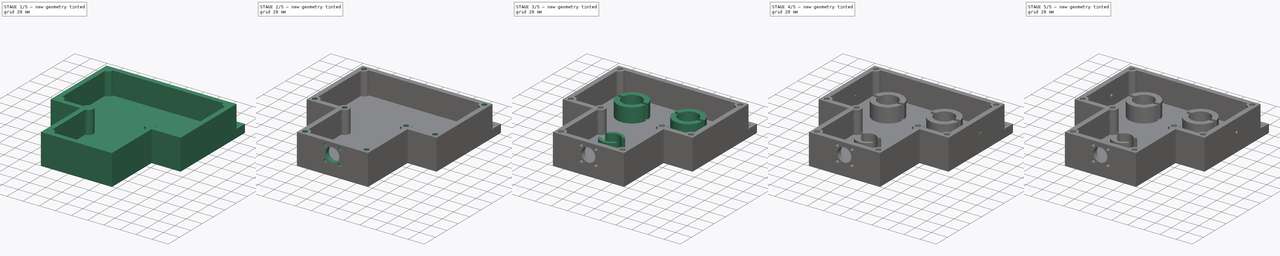
[diagram: build sequence overview — one tinted view per stage of 5, left to right]
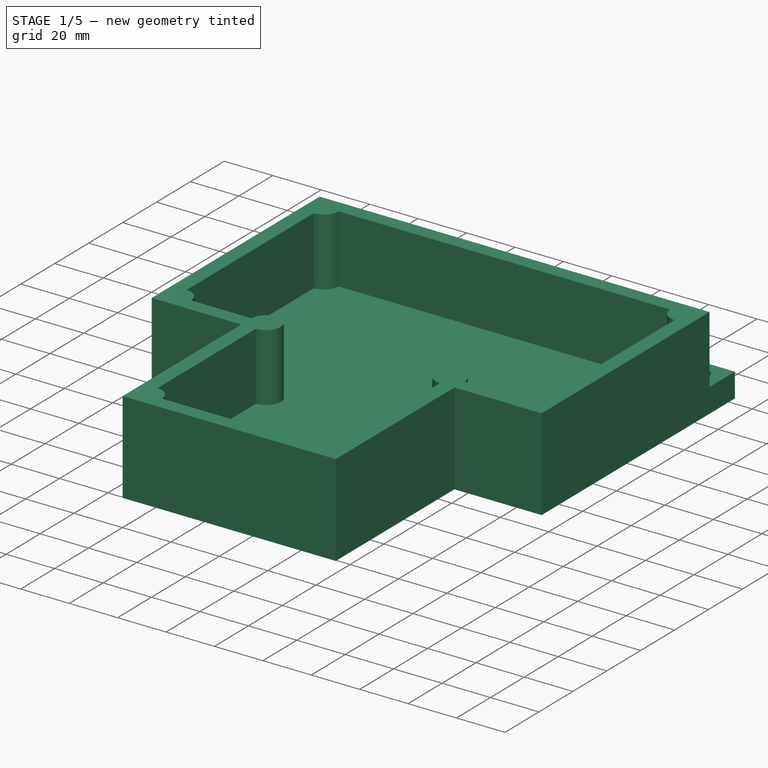
[diagram: stage 1 of 5 — iso view after this stage's code; geometry added in this stage tinted green]
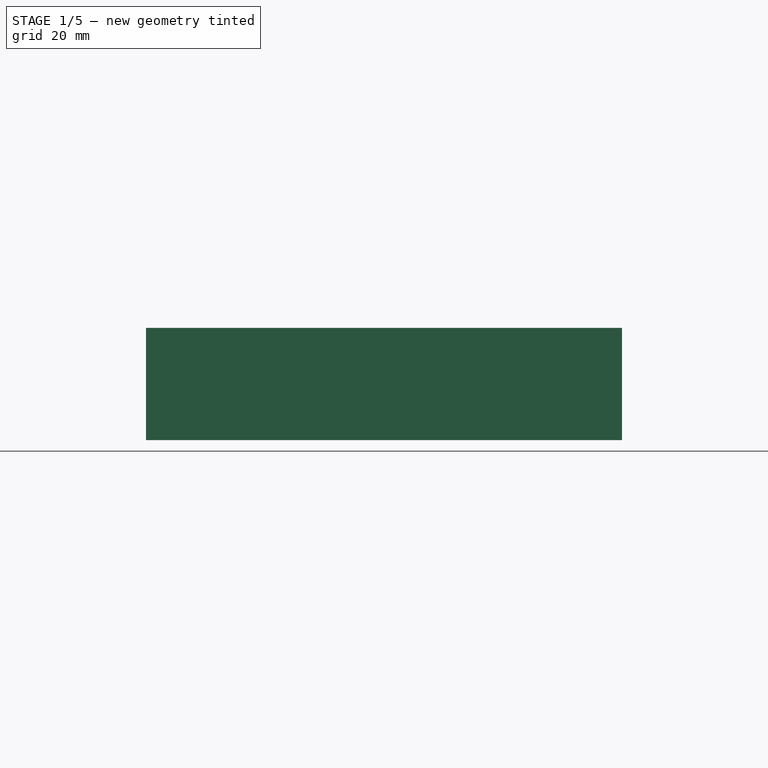
[diagram: stage 1 of 5 — front view after this stage's code; geometry added in this stage tinted green]
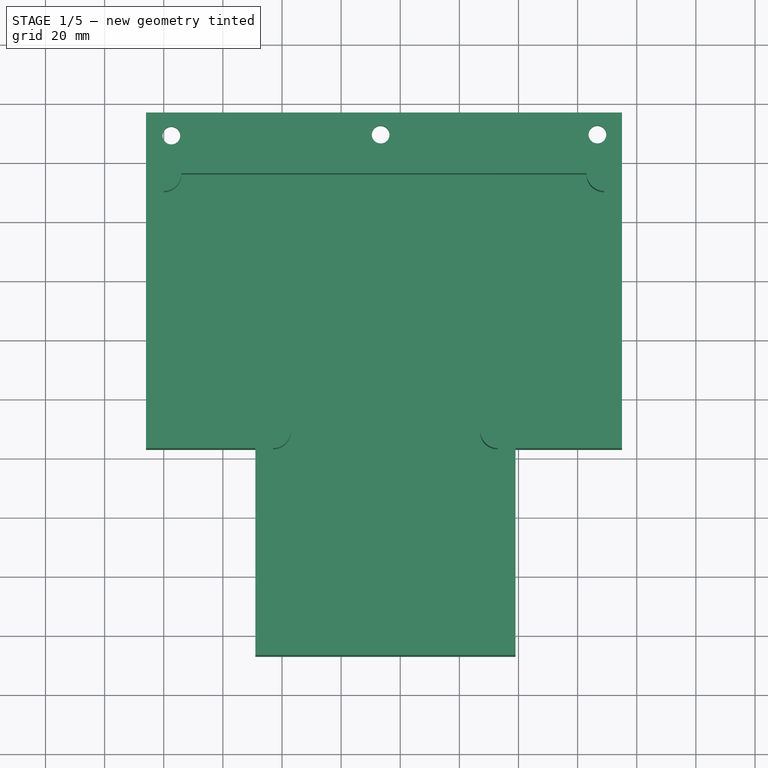
[diagram: stage 1 of 5 — top view after this stage's code; geometry added in this stage tinted green]
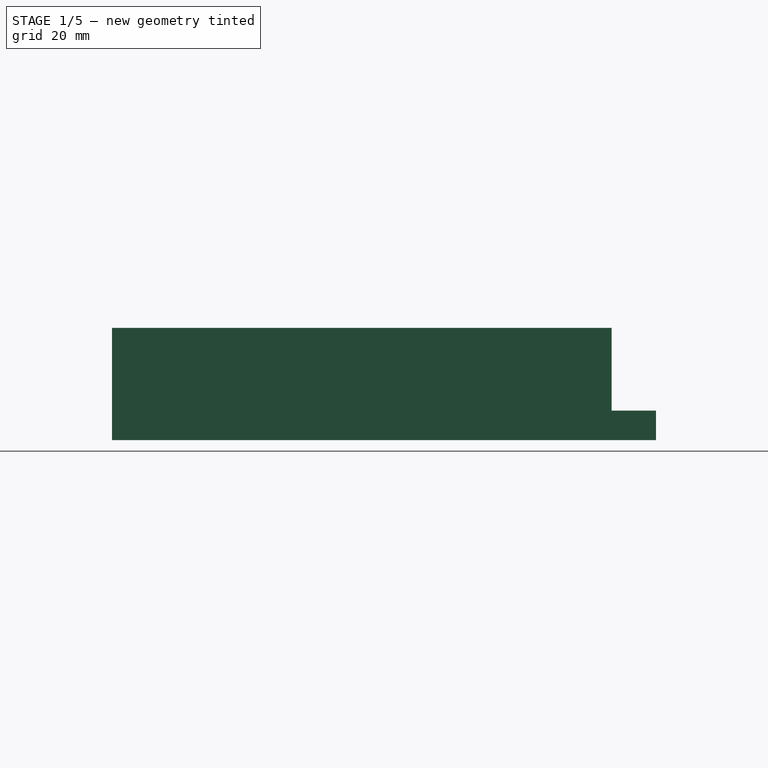
[diagram: stage 1 of 5 — right view after this stage's code; geometry added in this stage tinted green]
FCSTD DOCUMENT  (FreeCAD 0.19R)
Label: balunbox
License: All rights reserved
LicenseURL: http://en.wikipedia.org/wiki/All_rights_reserved
objects: Sketcher::SketchObject×16, PartDesign::Hole×10, PartDesign::Pad×6, PartDesign::Body×2, PartDesign::Plane×2
note: 52 computed .brp shape members not serialized (recipe doc carries the construction recipe); baked Part::Feature solids carry a one-line shape summary decoded from their .brp

FEATURE [Sketcher::SketchObject] Sketch
  FullyConstrained = false
  MapMode = 5
  Support = -> [XY_Plane]
  sketch-geometry (16):
    g0: Circle CenterX=0 CenterY=0 CenterZ=0 NormalX=0 NormalY=0 NormalZ=1 AngleXU=0 Radius=19
    g1: Circle CenterX=0 CenterY=0 CenterZ=0 NormalX=0 NormalY=0 NormalZ=1 AngleXU=0 Radius=31
    g2: LineSegment StartX=31 StartY=0 StartZ=0 EndX=39 EndY=0 EndZ=0
    g3: LineSegment StartX=39 StartY=0 StartZ=0 EndX=70 EndY=0 EndZ=0
    g4: Circle CenterX=70 CenterY=0 CenterZ=0 NormalX=0 NormalY=0 NormalZ=1 AngleXU=0 Radius=31
    g5: Circle CenterX=70 CenterY=0 CenterZ=0 NormalX=0 NormalY=0 NormalZ=1 AngleXU=0 Radius=19
    g6: LineSegment StartX=-46 StartY=57 StartZ=0 EndX=115 EndY=57 EndZ=0
    g7: LineSegment StartX=115 StartY=57 StartZ=0 EndX=115 EndY=-57 EndZ=0
    g8: LineSegment StartX=115 StartY=-57 StartZ=0 EndX=79 EndY=-57 EndZ=0
    g9: LineSegment StartX=-46 StartY=-57 StartZ=0 EndX=-46 EndY=57 EndZ=0
    g10: LineSegment StartX=35 StartY=2 StartZ=0 EndX=35 EndY=-96 EndZ=0
    g11: Circle CenterX=35 CenterY=-77.4649 CenterZ=0 NormalX=0 NormalY=0 NormalZ=1 AngleXU=0 Radius=25.5
    g12: LineSegment StartX=79 StartY=-57 StartZ=0 EndX=79 EndY=-127 EndZ=0
    g13: LineSegment StartX=79 StartY=-127 StartZ=0 EndX=-9 EndY=-127 EndZ=0
    g14: LineSegment StartX=-9 StartY=-127 StartZ=0 EndX=-9 EndY=-57 EndZ=0
    g15: LineSegment StartX=-9 StartY=-57 StartZ=0 EndX=-46 EndY=-57 EndZ=0
  constraints (33):
    c: Coincident(g0,g-1)
    c: Diameter(g0) = 38
    c: Coincident(g1,g0)
    c: Diameter(g1) = 62
    c: PointOnObject(g2,g1)
    c: PointOnObject(g2,g-1)
    c: Horizontal(g2)
    c: DistanceX(g2,g2) = 8
    c: Coincident(g3,g2)
    c: PointOnObject(g3,g-1)
    c: Coincident(g4,g3)
    c: Coincident(g5,g3)
    c: Coincident(g6,g7)
    c: Coincident(g7,g8)
    c: Coincident(g15,g9)
    c: Coincident(g9,g6)
    c: Horizontal(g6)
    c: Horizontal(g8)
    c: Vertical(g7)
    c: Vertical(g9)
    c: Vertical(g10)
    c: Diameter(g5) = 38
    c: Diameter(g4) = 62
    c: PointOnObject(g11,g10)
    c: Diameter(g11) = 51
    c: Coincident(g12,g13)
    c: Coincident(g13,g14)
    c: Horizontal(g13)
    c: Vertical(g12)
    c: Vertical(g14)
    c: Tangent(g8,g15)
    c: Coincident(g14,g15)
    c: Coincident(g12,g8)
FEATURE [PartDesign::Pad] Pad
  Direction = (1,1,1)
  Length = 10
  Length2 = 100
  Profile = -> Sketch
  Type = 0
FEATURE [Sketcher::SketchObject] Sketch001
  FullyConstrained = false
  MapMode = 2
  Placement = pos=(0,0,10) rot=(0,0,1;0rad)
  Support = -> [Sketch001]
  sketch-geometry (24):
    g0: LineSegment StartX=-46 StartY=42 StartZ=0 EndX=115 EndY=42 EndZ=0
    g1: LineSegment StartX=115 StartY=42 StartZ=0 EndX=115 EndY=-57 EndZ=0
    g2: LineSegment StartX=115 StartY=-57 StartZ=0 EndX=79 EndY=-57 EndZ=0
    g3: LineSegment StartX=79 StartY=-57 StartZ=0 EndX=79 EndY=-127 EndZ=0
    g4: LineSegment StartX=79 StartY=-127 StartZ=0 EndX=-9 EndY=-127 EndZ=0
    g5: LineSegment StartX=-9 StartY=-127 StartZ=0 EndX=-9 EndY=-57 EndZ=0
    g6: LineSegment StartX=-9 StartY=-57 StartZ=0 EndX=-46 EndY=-57 EndZ=0
    g7: LineSegment StartX=-46 StartY=-57 StartZ=0 EndX=-46 EndY=42 EndZ=0
    g8: LineSegment StartX=103 StartY=36 StartZ=0 EndX=-34 EndY=36 EndZ=0
    g9: LineSegment StartX=-40 StartY=30 StartZ=0 EndX=-40 EndY=-45 EndZ=0
    g10: LineSegment StartX=-34 StartY=-51 StartZ=0 EndX=-9 EndY=-51 EndZ=0
    g11: LineSegment StartX=-3 StartY=-57 StartZ=0 EndX=-3 EndY=-115 EndZ=0
    g12: LineSegment StartX=3 StartY=-121 StartZ=0 EndX=67.0096 EndY=-121 EndZ=0
    g13: LineSegment StartX=73 StartY=-115.01 StartZ=0 EndX=73 EndY=-57 EndZ=0
    g14: LineSegment StartX=79 StartY=-51 StartZ=0 EndX=103 EndY=-51 EndZ=0
    g15: LineSegment StartX=109 StartY=-45 StartZ=0 EndX=109 EndY=30 EndZ=0
    g16: ArcOfCircle CenterX=109 CenterY=36 CenterZ=0 NormalX=0 NormalY=0 NormalZ=1 AngleXU=0 Radius=6 StartAngle=3.14159 EndAngle=4.71239
    g17: ArcOfCircle CenterX=109 CenterY=-51 CenterZ=0 NormalX=0 NormalY=0 NormalZ=1 AngleXU=0 Radius=6 StartAngle=1.5708 EndAngle=3.14159
    g18: ArcOfCircle CenterX=-3 CenterY=-121 CenterZ=0 NormalX=0 NormalY=0 NormalZ=1 AngleXU=0 Radius=6 StartAngle=0 EndAngle=1.5708
    g19: ArcOfCircle CenterX=73 CenterY=-121 CenterZ=0 NormalX=0 NormalY=0 NormalZ=1 AngleXU=0 Radius=5.99043 StartAngle=1.5708 EndAngle=3.14159
    g20: ArcOfCircle CenterX=-40 CenterY=-51 CenterZ=0 NormalX=0 NormalY=0 NormalZ=1 AngleXU=0 Radius=6 StartAngle=0 EndAngle=1.5708
    g21: ArcOfCircle CenterX=-40 CenterY=36 CenterZ=0 NormalX=0 NormalY=0 NormalZ=1 AngleXU=0 Radius=6 StartAngle=4.71239 EndAngle=6.28319
    g22: ArcOfCircle CenterX=73 CenterY=-51 CenterZ=0 NormalX=0 NormalY=0 NormalZ=1 AngleXU=0 Radius=6 StartAngle=0 EndAngle=4.71239
    g23: ArcOfCircle CenterX=-3 CenterY=-51 CenterZ=0 NormalX=0 NormalY=0 NormalZ=1 AngleXU=0 Radius=6 StartAngle=4.71239 EndAngle=9.42478
  constraints (40):
    c: Horizontal(g0)
    c: Coincident(g0,g1)
    c: Vertical(g1)
    c: Coincident(g1,g2)
    c: Horizontal(g2)
    c: Coincident(g2,g3)
    c: Vertical(g3)
    c: Coincident(g3,g4)
    c: Horizontal(g4)
    c: Coincident(g4,g5)
    c: Vertical(g5)
    c: Coincident(g5,g6)
    c: Horizontal(g6)
    c: Coincident(g6,g7)
    c: Coincident(g7,g0)
    c: Vertical(g7)
    c: Horizontal(g8)
    c: Vertical(g9)
    c: Horizontal(g10)
    c: Vertical(g11)
    c: Horizontal(g12)
    c: Vertical(g13)
    c: Horizontal(g14)
    c: Vertical(g15)
    c: Coincident(g9,g21)
    c: Coincident(g8,g21)
    c: Coincident(g8,g16)
    c: Coincident(g15,g16)
    c: Coincident(g14,g17)
    c: Coincident(g15,g17)
    c: Coincident(g14,g22)
    c: Coincident(g13,g22)
    c: Coincident(g19,g13)
    c: Coincident(g19,g12)
    c: Coincident(g11,g18)
    c: Coincident(g12,g18)
    c: Coincident(g23,g11)
    c: Coincident(g10,g23)
    c: Coincident(g10,g20)
    c: Coincident(g9,g20)
FEATURE [PartDesign::Pad] Pad001
  BaseFeature = -> Pad
  Direction = (1,1,1)
  Length = 28
  Length2 = 100
  Profile = -> Sketch001
  Type = 0
FEATURE [Sketcher::SketchObject] Sketch003
  FullyConstrained = false
  MapMode = 5
  Placement = pos=(0,0,10) rot=(0,0,1;0rad)
  sketch-geometry (3):
    g0: Circle CenterX=33.3701 CenterY=49.549 CenterZ=0 NormalX=0 NormalY=0 NormalZ=1 AngleXU=0 Radius=3.62985
    g1: Circle CenterX=106.697 CenterY=49.5731 CenterZ=0 NormalX=0 NormalY=0 NormalZ=1 AngleXU=0 Radius=3.57971
    g2: Circle CenterX=-37.429 CenterY=49.2365 CenterZ=0 NormalX=0 NormalY=0 NormalZ=1 AngleXU=0 Radius=3.62775
FEATURE [PartDesign::Hole] Hole
  BaseFeature = -> Pad001
  Depth = 25
  DepthType = 0
  Diameter = 6
  DrillForDepth = false
  DrillPoint = 1
  DrillPointAngle = 118
  HoleCutCountersinkAngle = 90
  HoleCutCustomValues = false
  HoleCutDepth = 0
  HoleCutDiameter = 6.1
  HoleCutType = 0
  ModelActualThread = false
  Profile = -> Sketch003
  Tapered = false
  TaperedAngle = 90
  ThreadAngle = 0
  ThreadClass = 0
  ThreadCutOffInner = 0
  ThreadCutOffOuter = 0
  ThreadDirection = 0
  ThreadFit = 0
  ThreadPitch = 0
  ThreadSize = 0
  ThreadType = 0
  Threaded = false
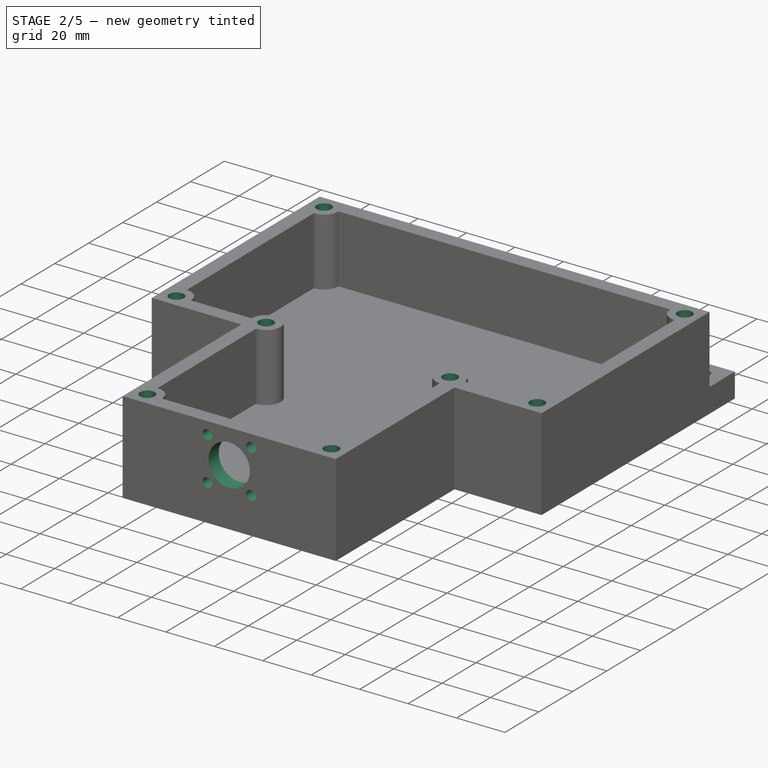
[diagram: stage 2 of 5 — iso view after this stage's code; geometry added in this stage tinted green]
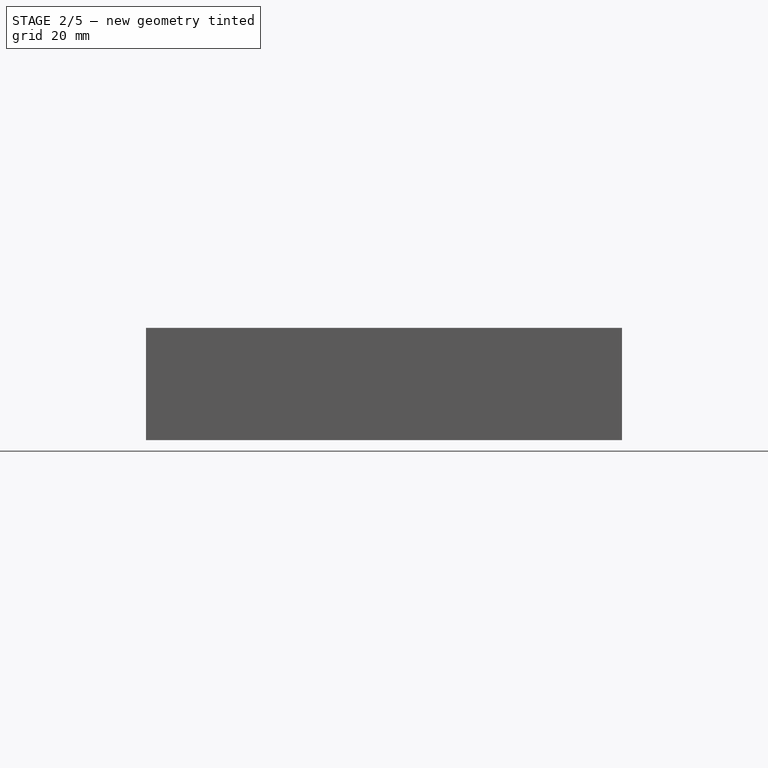
[diagram: stage 2 of 5 — front view after this stage's code; geometry added in this stage tinted green]
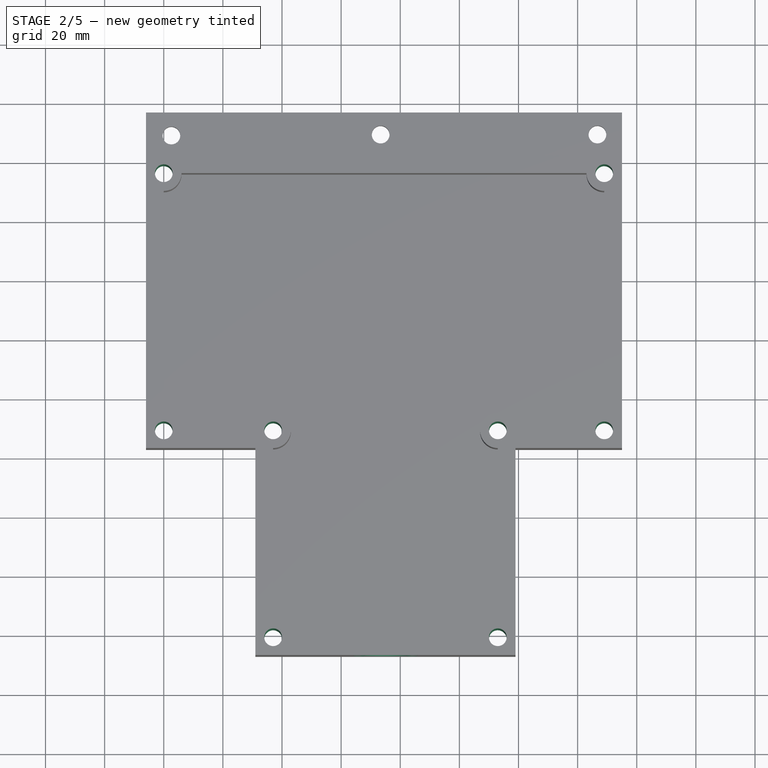
[diagram: stage 2 of 5 — top view after this stage's code; geometry added in this stage tinted green]
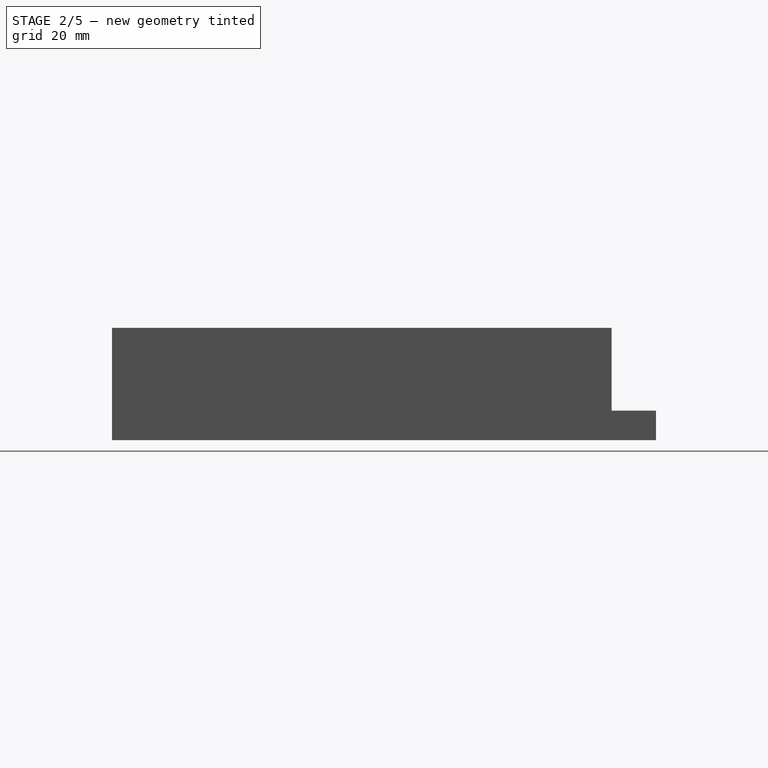
[diagram: stage 2 of 5 — right view after this stage's code; geometry added in this stage tinted green]
FEATURE [PartDesign::Body] Body001  label="lid"
  Group = -> [Sketch004,Pad002,Sketch005,Hole001,Sketch007,Hole003]
  Origin = -> Origin001
  Placement = pos=(0,0,38) rot=(0,0,1;0rad)
  Tip = -> Hole003
FEATURE [Sketcher::SketchObject] Sketch008
  FullyConstrained = false
  MapMode = 5
  Placement = pos=(0,0,38) rot=(0,0,1;0rad)
  Support = -> [Hole]
  sketch-geometry (8):
    g0: Circle CenterX=-40 CenterY=36 CenterZ=0 NormalX=0 NormalY=0 NormalZ=1 AngleXU=0 Radius=2.95639
    g1: Circle CenterX=109 CenterY=36 CenterZ=0 NormalX=0 NormalY=0 NormalZ=1 AngleXU=0 Radius=3.01401
    g2: Circle CenterX=109 CenterY=-51 CenterZ=0 NormalX=0 NormalY=0 NormalZ=1 AngleXU=0 Radius=3
    g3: Circle CenterX=73 CenterY=-51 CenterZ=0 NormalX=0 NormalY=0 NormalZ=1 AngleXU=0 Radius=3.23206
    g4: Circle CenterX=-3 CenterY=-51 CenterZ=0 NormalX=0 NormalY=0 NormalZ=1 AngleXU=0 Radius=3
    g5: Circle CenterX=-40 CenterY=-51 CenterZ=0 NormalX=0 NormalY=0 NormalZ=1 AngleXU=0 Radius=3
    g6: Circle CenterX=-3 CenterY=-121 CenterZ=0 NormalX=0 NormalY=0 NormalZ=1 AngleXU=0 Radius=3
    g7: Circle CenterX=73 CenterY=-121 CenterZ=0 NormalX=0 NormalY=0 NormalZ=1 AngleXU=0 Radius=3
FEATURE [PartDesign::Hole] Hole004
  BaseFeature = -> Hole
  Depth = 45
  DepthType = 0
  Diameter = 6
  DrillForDepth = false
  DrillPoint = 1
  DrillPointAngle = 118
  HoleCutCountersinkAngle = 90
  HoleCutCustomValues = false
  HoleCutDepth = 0
  HoleCutDiameter = 6.1
  HoleCutType = 0
  ModelActualThread = false
  Profile = -> Sketch008
  Tapered = false
  TaperedAngle = 90
  ThreadAngle = 0
  ThreadClass = 0
  ThreadCutOffInner = 0
  ThreadCutOffOuter = 0
  ThreadDirection = 0
  ThreadFit = 0
  ThreadPitch = 0
  ThreadSize = 0
  ThreadType = 0
  Threaded = false
FEATURE [Sketcher::SketchObject] Sketch009
  FullyConstrained = false
  MapMode = 5
  Placement = pos=(0,-127,0) rot=(1,0,0;1.5708rad)
  Support = -> [Hole004]
  sketch-geometry (4):
    g0: Circle CenterX=26.0039 CenterY=32.9514 CenterZ=0 NormalX=0 NormalY=0 NormalZ=1 AngleXU=0 Radius=1.99824
    g1: Circle CenterX=44.0254 CenterY=32.9994 CenterZ=0 NormalX=0 NormalY=0 NormalZ=1 AngleXU=0 Radius=2.03154
    g2: Circle CenterX=26 CenterY=15 CenterZ=0 NormalX=0 NormalY=0 NormalZ=1 AngleXU=0 Radius=2
    g3: Circle CenterX=44 CenterY=15 CenterZ=0 NormalX=0 NormalY=0 NormalZ=1 AngleXU=0 Radius=2
FEATURE [PartDesign::Hole] Hole005
  BaseFeature = -> Hole004
  Depth = 10
  DepthType = 0
  Diameter = 4
  DrillForDepth = false
  DrillPoint = 1
  DrillPointAngle = 118
  HoleCutCountersinkAngle = 90
  HoleCutCustomValues = false
  HoleCutDepth = 0
  HoleCutDiameter = 6.1
  HoleCutType = 0
  ModelActualThread = false
  Profile = -> Sketch009
  Tapered = false
  TaperedAngle = 90
  ThreadAngle = 0
  ThreadClass = 0
  ThreadCutOffInner = 0
  ThreadCutOffOuter = 0
  ThreadDirection = 0
  ThreadFit = 0
  ThreadPitch = 0
  ThreadSize = 0
  ThreadType = 0
  Threaded = false
FEATURE [Sketcher::SketchObject] Sketch010
  FullyConstrained = false
  MapMode = 5
  Placement = pos=(0,-127,0) rot=(1,0,0;1.5708rad)
  Support = -> [Hole005]
  sketch-geometry (1):
    g0: Circle CenterX=35 CenterY=24 CenterZ=0 NormalX=0 NormalY=0 NormalZ=1 AngleXU=0 Radius=8.49326
FEATURE [PartDesign::Hole] Hole006
  BaseFeature = -> Hole005
  Depth = 10
  DepthType = 0
  Diameter = 17
  DrillForDepth = false
  DrillPoint = 1
  DrillPointAngle = 118
  HoleCutCountersinkAngle = 90
  HoleCutCustomValues = false
  HoleCutDepth = 0
  HoleCutDiameter = 6.1
  HoleCutType = 0
  ModelActualThread = false
  Profile = -> Sketch010
  Tapered = false
  TaperedAngle = 90
  ThreadAngle = 0
  ThreadClass = 0
  ThreadCutOffInner = 0
  ThreadCutOffOuter = 0
  ThreadDirection = 0
  ThreadFit = 0
  ThreadPitch = 0
  ThreadSize = 0
  ThreadType = 0
  Threaded = false
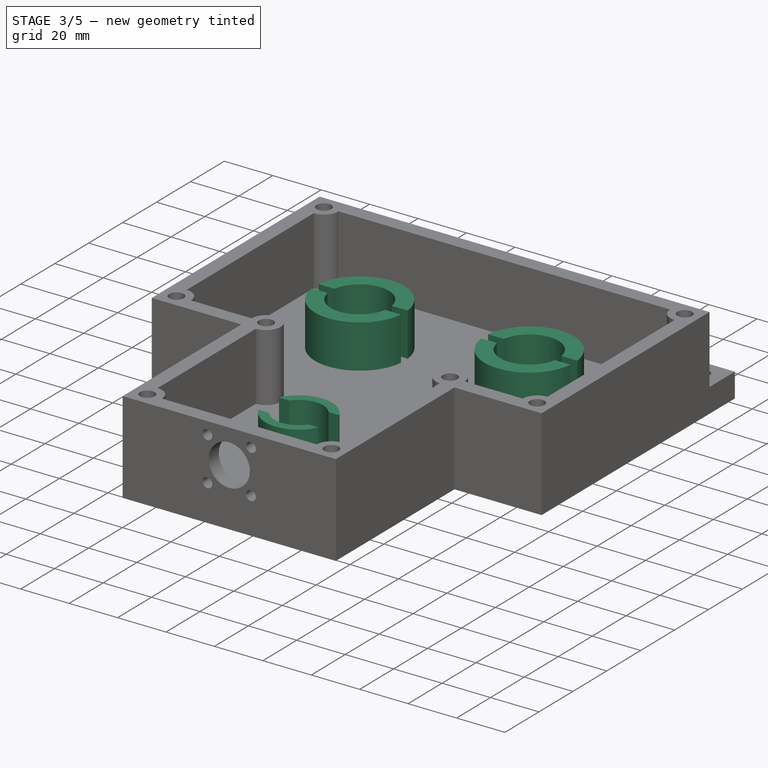
[diagram: stage 3 of 5 — iso view after this stage's code; geometry added in this stage tinted green]
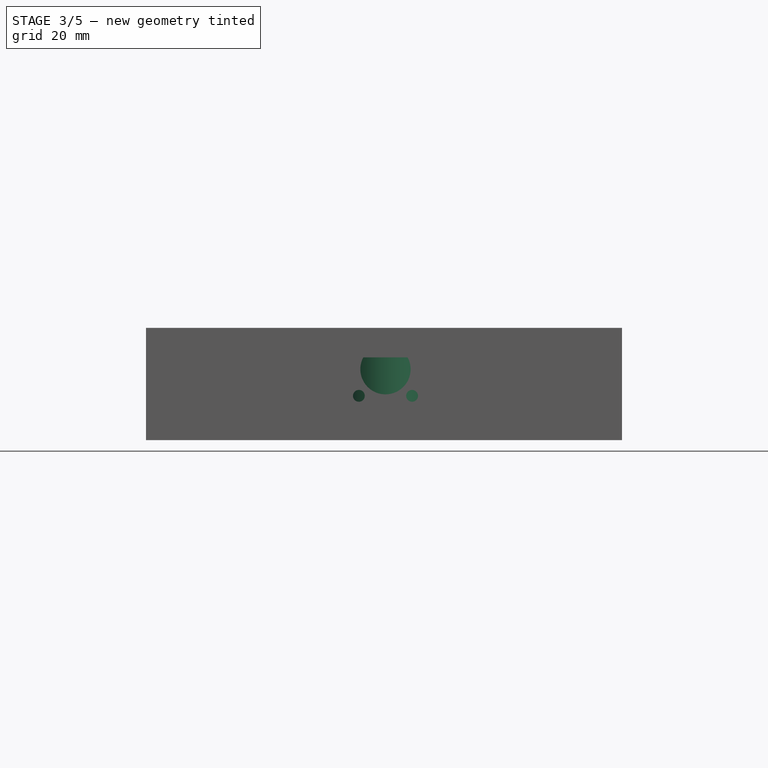
[diagram: stage 3 of 5 — front view after this stage's code; geometry added in this stage tinted green]
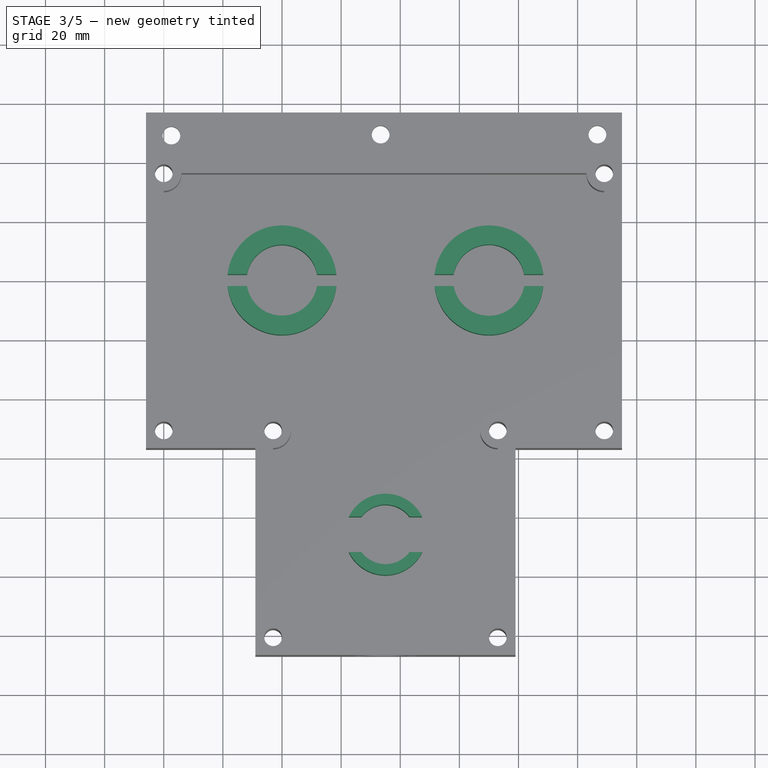
[diagram: stage 3 of 5 — top view after this stage's code; geometry added in this stage tinted green]
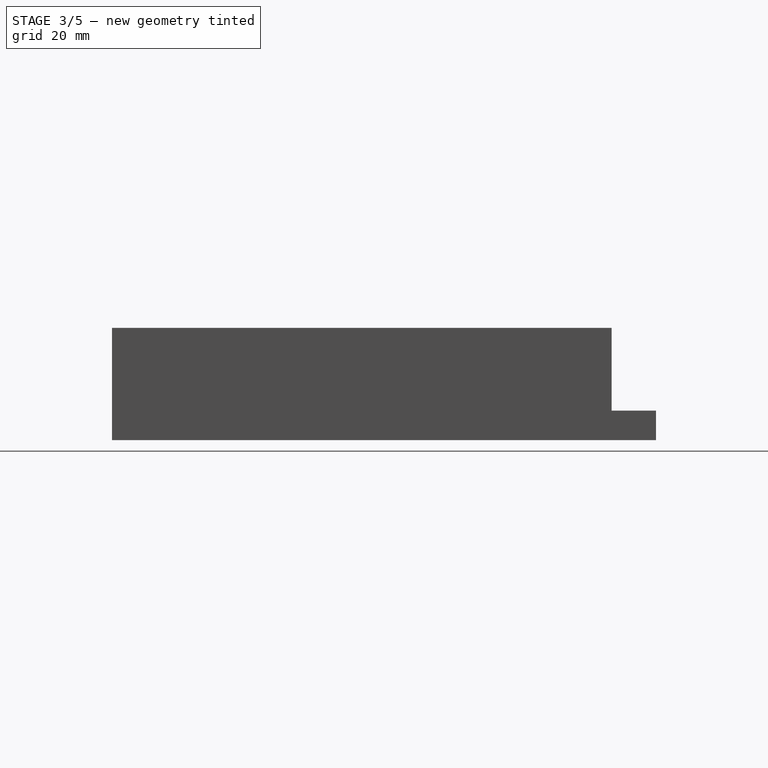
[diagram: stage 3 of 5 — right view after this stage's code; geometry added in this stage tinted green]
FEATURE [Sketcher::SketchObject] Sketch011
  FullyConstrained = false
  MapMode = 5
  Placement = pos=(0,0,10) rot=(0,0,1;0rad)
  Support = -> [Hole006]
  sketch-geometry (8):
    g0: ArcOfCircle CenterX=0 CenterY=0 CenterZ=0 NormalX=0 NormalY=0 NormalZ=1 AngleXU=0 Radius=18.5 StartAngle=3.24991 EndAngle=6.17487
    g1: ArcOfCircle CenterX=0 CenterY=0 CenterZ=0 NormalX=0 NormalY=0 NormalZ=1 AngleXU=0 Radius=12.0009 StartAngle=3.30903 EndAngle=6.11575
    g2: LineSegment StartX=-18.3916 StartY=2 StartZ=0 EndX=-11.833 EndY=2 EndZ=0
    g3: LineSegment StartX=18.3916 StartY=-2 StartZ=0 EndX=11.833 EndY=-2 EndZ=0
    g4: LineSegment StartX=11.833 StartY=2 StartZ=0 EndX=18.3916 EndY=2 EndZ=0
    g5: LineSegment StartX=-11.833 StartY=-2 StartZ=0 EndX=-18.3916 EndY=-2 EndZ=0
    g6: ArcOfCircle CenterX=0 CenterY=0 CenterZ=0 NormalX=0 NormalY=0 NormalZ=1 AngleXU=0 Radius=12.0009 StartAngle=0.167436 EndAngle=2.97416
    g7: ArcOfCircle CenterX=0 CenterY=0 CenterZ=0 NormalX=0 NormalY=0 NormalZ=1 AngleXU=0 Radius=18.5 StartAngle=0.10832 EndAngle=3.03327
  constraints (19):
    c: Coincident(g0,g-1)
    c: Diameter(g0) = 37
    c: Coincident(g1,g0)
    c: Horizontal(g2)
    c: Horizontal(g3)
    c: Tangent(g2,g4)
    c: Tangent(g3,g5)
    c: Coincident(g0,g5)
    c: Coincident(g7,g2)
    c: Coincident(g1,g5)
    c: Coincident(g6,g2)
    c: Equal(g1,g6)
    c: Coincident(g1,g3)
    c: Coincident(g6,g4)
    c: Coincident(g1,g6)
    c: Equal(g0,g7)
    c: Coincident(g0,g7)
    c: Coincident(g4,g7)
    c: Coincident(g3,g0)
FEATURE [PartDesign::Pad] Pad003
  BaseFeature = -> Hole006
  Direction = (1,1,1)
  Length = 18
  Length2 = 100
  Profile = -> Sketch011
  Type = 0
FEATURE [Sketcher::SketchObject] Sketch012
  FullyConstrained = false
  MapMode = 5
  Placement = pos=(0,0,10) rot=(0,0,1;0rad)
  Support = -> [Pad003]
  sketch-geometry (8):
    g0: ArcOfCircle CenterX=70 CenterY=0 CenterZ=0 NormalX=0 NormalY=0 NormalZ=1 AngleXU=0 Radius=18.5 StartAngle=3.24991 EndAngle=6.17487
    g1: ArcOfCircle CenterX=70 CenterY=0 CenterZ=0 NormalX=0 NormalY=0 NormalZ=1 AngleXU=0 Radius=12.0625 StartAngle=3.30816 EndAngle=6.11661
    g2: LineSegment StartX=51.6084 StartY=2 StartZ=0 EndX=58.1044 EndY=2 EndZ=0
    g3: LineSegment StartX=88.3916 StartY=-2 StartZ=0 EndX=81.8956 EndY=-2 EndZ=0
    g4: LineSegment StartX=81.8956 StartY=2 StartZ=0 EndX=88.3916 EndY=2 EndZ=0
    g5: LineSegment StartX=58.1044 StartY=-2 StartZ=0 EndX=51.6084 EndY=-2 EndZ=0
    g6: ArcOfCircle CenterX=70 CenterY=0 CenterZ=0 NormalX=0 NormalY=0 NormalZ=1 AngleXU=0 Radius=18.5 StartAngle=0.10832 EndAngle=3.03327
    g7: ArcOfCircle CenterX=70 CenterY=0 CenterZ=0 NormalX=0 NormalY=0 NormalZ=1 AngleXU=0 Radius=12.0625 StartAngle=0.166572 EndAngle=2.97502
  constraints (19):
    c: PointOnObject(g0,g-1)
    c: Diameter(g0) = 37
    c: Coincident(g1,g0)
    c: Horizontal(g2)
    c: Horizontal(g3)
    c: Tangent(g2,g4)
    c: Tangent(g3,g5)
    c: Coincident(g0,g5)
    c: Coincident(g6,g2)
    c: Coincident(g1,g5)
    c: Coincident(g7,g2)
    c: Equal(g0,g6)
    c: Coincident(g0,g3)
    c: Coincident(g6,g4)
    c: Coincident(g0,g6)
    c: Equal(g1,g7)
    c: Coincident(g1,g3)
    c: Coincident(g7,g4)
    c: Coincident(g1,g7)
FEATURE [PartDesign::Pad] Pad004
  BaseFeature = -> Pad003
  Direction = (1,1,1)
  Length = 18
  Length2 = 100
  Profile = -> Sketch012
  Type = 0
FEATURE [Sketcher::SketchObject] Sketch013
  FullyConstrained = false
  MapMode = 5
  Placement = pos=(0,0,10) rot=(0,0,1;0rad)
  Support = -> [Pad004]
  sketch-geometry (10):
    g0: LineSegment StartX=72.9924 StartY=-51.0947 StartZ=0 EndX=-2.90292 EndY=-121.044 EndZ=0
    g1: LineSegment StartX=-2.97844 StartY=-51.021 StartZ=0 EndX=73.0596 EndY=-121.065 EndZ=0
    g2: ArcOfCircle CenterX=35.0033 CenterY=-86.0086 CenterZ=0 NormalX=0 NormalY=0 NormalZ=1 AngleXU=0 Radius=13.75 StartAngle=0.452246 EndAngle=2.68935
    g3: ArcOfCircle CenterX=35.0033 CenterY=-86.0086 CenterZ=0 NormalX=0 NormalY=0 NormalZ=1 AngleXU=0 Radius=10.085 StartAngle=0.638254 EndAngle=2.50334
    g4: LineSegment StartX=22.6356 StartY=-80 StartZ=0 EndX=26.9037 EndY=-80 EndZ=0
    g5: LineSegment StartX=47.3793 StartY=-92 StartZ=0 EndX=43.1156 EndY=-92 EndZ=0
    g6: ArcOfCircle CenterX=35.0033 CenterY=-86.0086 CenterZ=0 NormalX=0 NormalY=0 NormalZ=1 AngleXU=0 Radius=10.085 StartAngle=3.77773 EndAngle=5.64705
    g7: ArcOfCircle CenterX=35.0033 CenterY=-86.0086 CenterZ=0 NormalX=0 NormalY=0 NormalZ=1 AngleXU=0 Radius=13.75 StartAngle=3.59245 EndAngle=5.83232
    g8: LineSegment StartX=43.1029 StartY=-80 StartZ=0 EndX=47.371 EndY=-80 EndZ=0
    g9: LineSegment StartX=26.891 StartY=-92 StartZ=0 EndX=22.6273 EndY=-92 EndZ=0
  constraints (21):
    c: PointOnObject(g2,g1)
    c: Diameter(g2) = 27.5
    c: Coincident(g3,g2)
    c: Horizontal(g4)
    c: Horizontal(g5)
    c: Coincident(g2,g8)
    c: Coincident(g7,g5)
    c: PointOnObject(g3,g4)
    c: Equal(g3,g6)
    c: PointOnObject(g6,g5)
    c: Coincident(g3,g6)
    c: Equal(g2,g7)
    c: Coincident(g2,g4)
    c: Coincident(g7,g9)
    c: Coincident(g2,g7)
    c: Tangent(g4,g8)
    c: Tangent(g5,g9)
    c: PointOnObject(g9,g6)
    c: Coincident(g5,g6)
    c: Coincident(g4,g3)
    c: PointOnObject(g8,g3)
FEATURE [PartDesign::Pad] Pad005
  BaseFeature = -> Pad004
  Direction = (1,1,1)
  Length = 18
  Length2 = 100
  Profile = -> Sketch013
  Type = 0
FEATURE [PartDesign::Plane] DatumPlane
  AttachmentOffset = pos=(0,3,0) rot=(0,0,1;0rad)
  Length = 181.142
  MapMode = 5
  Placement = pos=(-5e-16,-2,3) rot=(0,0.707107,0.707107;3.14159rad)
  ResizeMode = 0
  Support = -> [Pad005]
  Width = 83.1425
FEATURE [Sketcher::SketchObject] Sketch014
  FullyConstrained = false
  MapMode = 5
  Placement = pos=(-5e-16,-2,3) rot=(0,0.707107,0.707107;3.14159rad)
  Support = -> [DatumPlane]
  sketch-geometry (1):
    g0: Circle CenterX=-71.0695 CenterY=8.90363 CenterZ=0 NormalX=0 NormalY=0 NormalZ=1 AngleXU=0 Radius=1.91904
FEATURE [PartDesign::Hole] Hole007
  BaseFeature = -> Pad005
  Depth = 22
  DepthType = 0
  Diameter = 3.5
  DrillForDepth = false
  DrillPoint = 1
  DrillPointAngle = 118
  HoleCutCountersinkAngle = 90
  HoleCutCustomValues = false
  HoleCutDepth = 0
  HoleCutDiameter = 6.1
  HoleCutType = 0
  ModelActualThread = false
  Profile = -> Sketch014
  Reversed = true
  Tapered = false
  TaperedAngle = 90
  ThreadAngle = 0
  ThreadClass = 0
  ThreadCutOffInner = 0
  ThreadCutOffOuter = 0
  ThreadDirection = 0
  ThreadFit = 0
  ThreadPitch = 0
  ThreadSize = 0
  ThreadType = 0
  Threaded = false
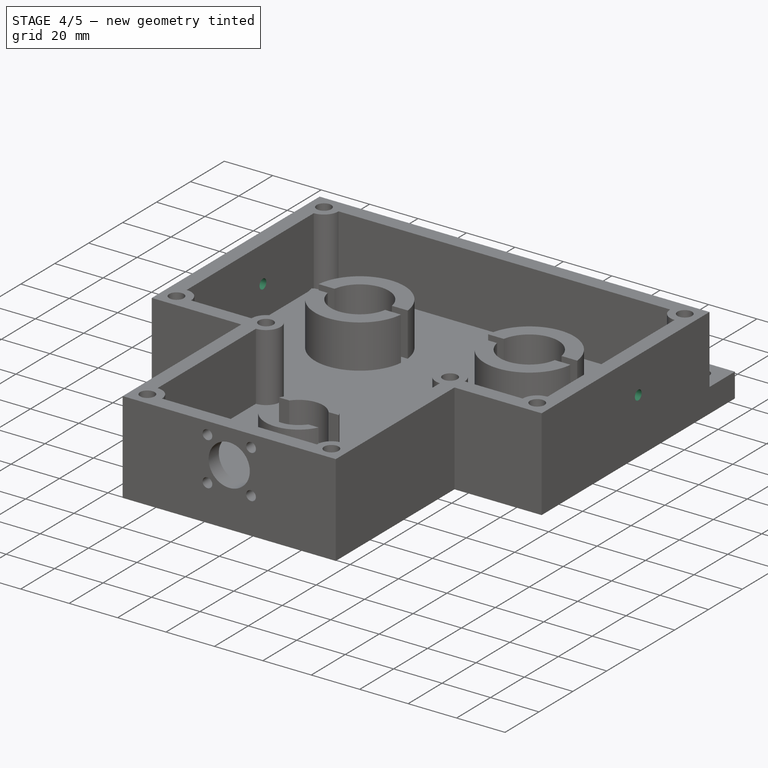
[diagram: stage 4 of 5 — iso view after this stage's code; geometry added in this stage tinted green]
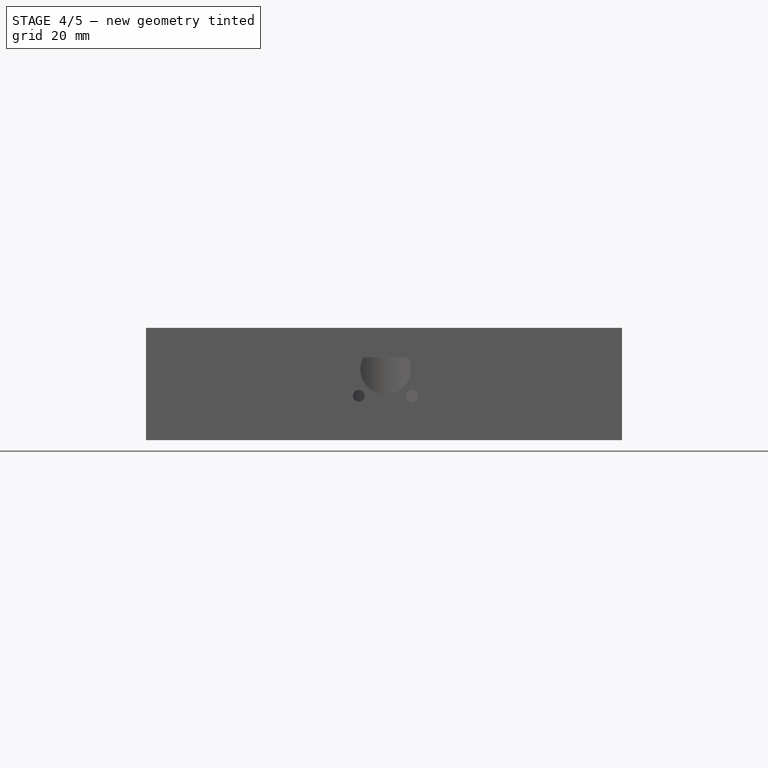
[diagram: stage 4 of 5 — front view after this stage's code; geometry added in this stage tinted green]
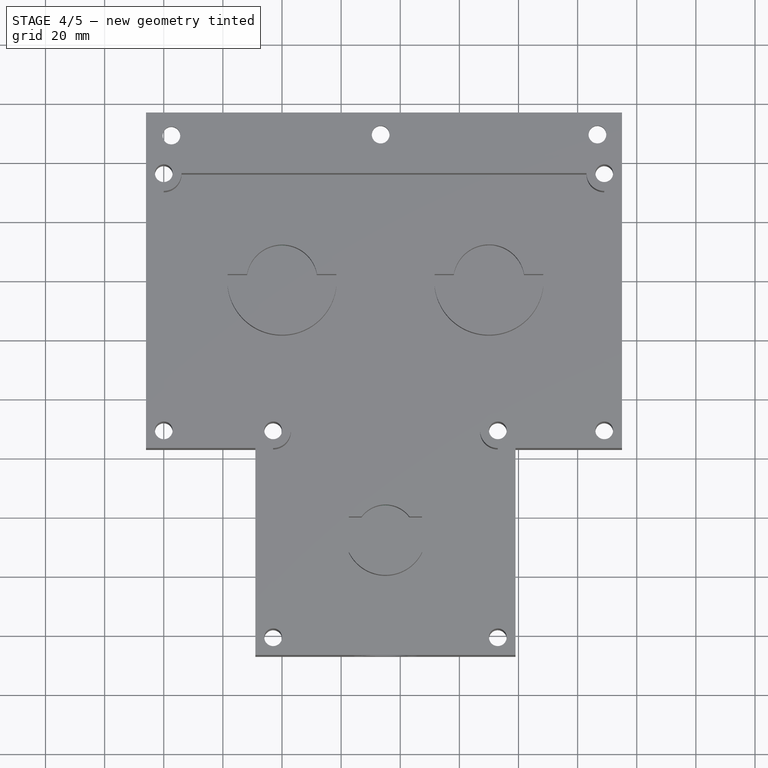
[diagram: stage 4 of 5 — top view after this stage's code; geometry added in this stage tinted green]
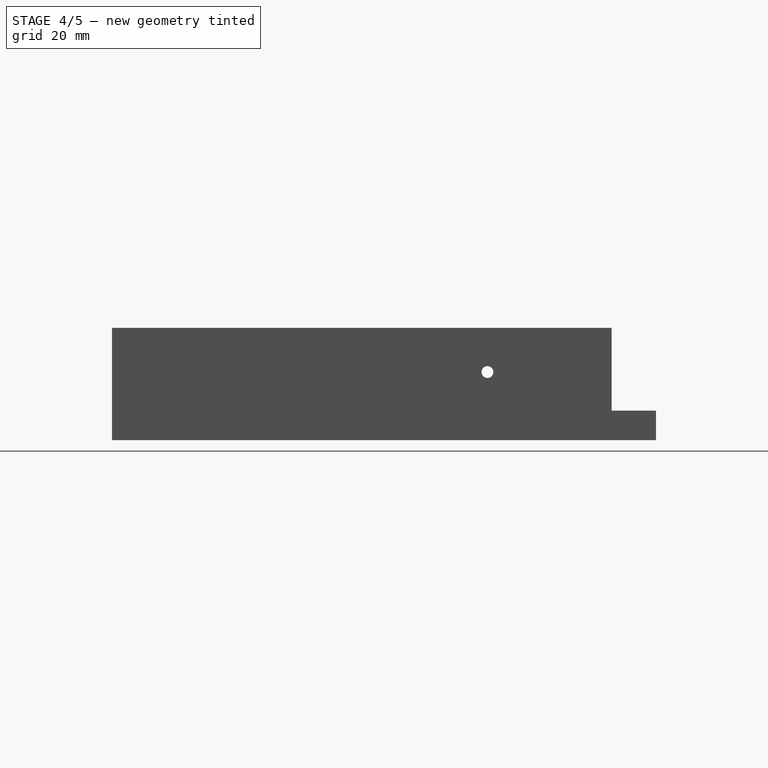
[diagram: stage 4 of 5 — right view after this stage's code; geometry added in this stage tinted green]
FEATURE [Sketcher::SketchObject] Sketch015
  FullyConstrained = false
  MapMode = 5
  Placement = pos=(-5e-16,-2,3) rot=(0,0.707107,0.707107;3.14159rad)
  Support = -> [DatumPlane]
  sketch-geometry (1):
    g0: Circle CenterX=0 CenterY=9 CenterZ=0 NormalX=0 NormalY=0 NormalZ=1 AngleXU=0 Radius=1.88019
  constraints (1):
    c: PointOnObject(g0,g-2)
FEATURE [PartDesign::Hole] Hole008
  BaseFeature = -> Hole007
  Depth = 25
  DepthType = 0
  Diameter = 3.5
  DrillForDepth = false
  DrillPoint = 1
  DrillPointAngle = 118
  HoleCutCountersinkAngle = 90
  HoleCutCustomValues = false
  HoleCutDepth = 0
  HoleCutDiameter = 6.1
  HoleCutType = 0
  ModelActualThread = false
  Profile = -> Sketch015
  Reversed = true
  Tapered = false
  TaperedAngle = 90
  ThreadAngle = 0
  ThreadClass = 0
  ThreadCutOffInner = 0
  ThreadCutOffOuter = 0
  ThreadDirection = 0
  ThreadFit = 0
  ThreadPitch = 0
  ThreadSize = 0
  ThreadType = 0
  Threaded = false
FEATURE [PartDesign::Plane] DatumPlane001
  Length = 181.142
  MapMode = 5
  Placement = pos=(0,-80,0) rot=(1,0,0;1.5708rad)
  ResizeMode = 0
  Support = -> [Hole008]
  Width = 83.1425
FEATURE [Sketcher::SketchObject] Sketch016
  FullyConstrained = false
  MapMode = 5
  Placement = pos=(0,-80,0) rot=(1,0,0;1.5708rad)
  Support = -> [DatumPlane001]
  sketch-geometry (1):
    g0: Circle CenterX=35 CenterY=12 CenterZ=0 NormalX=0 NormalY=0 NormalZ=1 AngleXU=0 Radius=2
FEATURE [PartDesign::Hole] Hole009
  BaseFeature = -> Hole008
  Depth = 25
  DepthType = 0
  Diameter = 3.5
  DrillForDepth = false
  DrillPoint = 1
  DrillPointAngle = 118
  HoleCutCountersinkAngle = 90
  HoleCutCustomValues = false
  HoleCutDepth = 0
  HoleCutDiameter = 6.1
  HoleCutType = 0
  ModelActualThread = false
  Profile = -> Sketch016
  Tapered = false
  TaperedAngle = 90
  ThreadAngle = 0
  ThreadClass = 0
  ThreadCutOffInner = 0
  ThreadCutOffOuter = 0
  ThreadDirection = 0
  ThreadFit = 0
  ThreadPitch = 0
  ThreadSize = 0
  ThreadType = 0
  Threaded = false
FEATURE [Sketcher::SketchObject] Sketch017
  FullyConstrained = false
  MapMode = 5
  Placement = pos=(-46,0,0) rot=(0.57735,-0.57735,-0.57735;2.0944rad)
  Support = -> [Hole009]
  sketch-geometry (1):
    g0: Circle CenterX=0 CenterY=23.046 CenterZ=0 NormalX=0 NormalY=0 NormalZ=1 AngleXU=0 Radius=1.05468
  constraints (1):
    c: PointOnObject(g0,g-2)
FEATURE [PartDesign::Hole] Hole010
  BaseFeature = -> Hole009
  Depth = 162
  DepthType = 0
  Diameter = 4
  DrillForDepth = false
  DrillPoint = 1
  DrillPointAngle = 118
  HoleCutCountersinkAngle = 90
  HoleCutCustomValues = false
  HoleCutDepth = 0
  HoleCutDiameter = 6.1
  HoleCutType = 0
  ModelActualThread = false
  Profile = -> Sketch017
  Tapered = false
  TaperedAngle = 90
  ThreadAngle = 0
  ThreadClass = 0
  ThreadCutOffInner = 0
  ThreadCutOffOuter = 0
  ThreadDirection = 0
  ThreadFit = 0
  ThreadPitch = 0
  ThreadSize = 0
  ThreadType = 0
  Threaded = false
FEATURE [PartDesign::Body] Body  label="box"
  Group = -> [Sketch,Pad,Sketch001,Pad001,Sketch003,Hole,Sketch008,Hole004,Sketch009,Hole005,Sketch010,Hole006,Sketch011,Pad003,Sketch012,Pad004,Sketch013,Pad005,DatumPlane,Sketch014,Hole007,Sketch015,Hole008,DatumPlane001,Sketch016,Hole009,Sketch017,Hole010]
  Origin = -> Origin
  Tip = -> Hole010
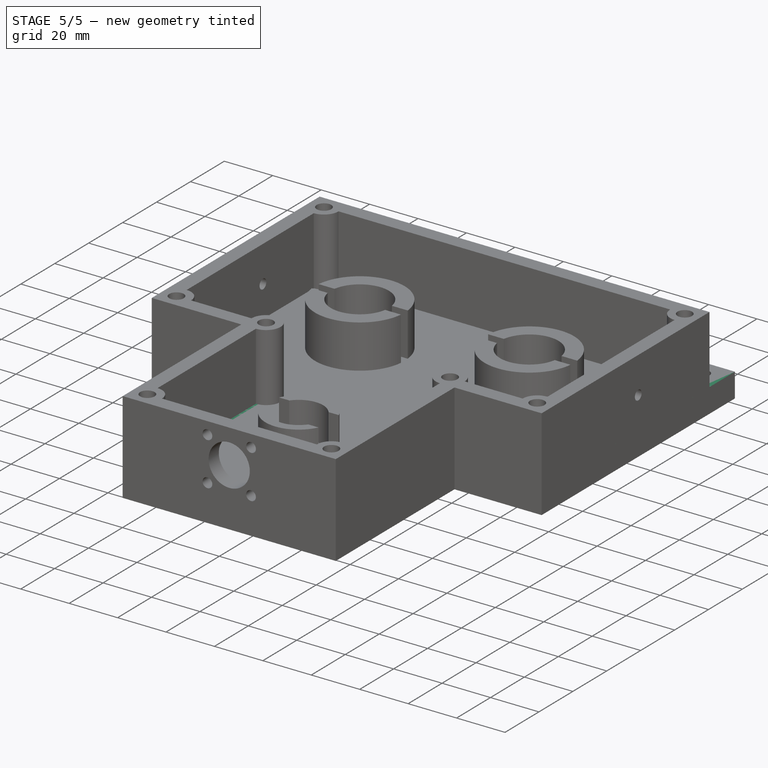
[diagram: stage 5 of 5 — iso view after this stage's code; geometry added in this stage tinted green]
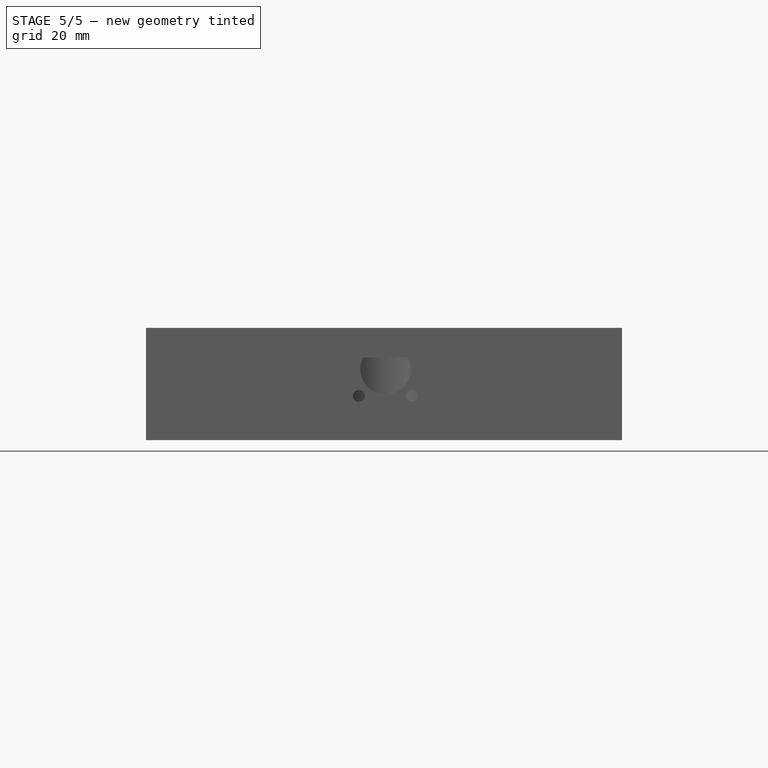
[diagram: stage 5 of 5 — front view after this stage's code; geometry added in this stage tinted green]
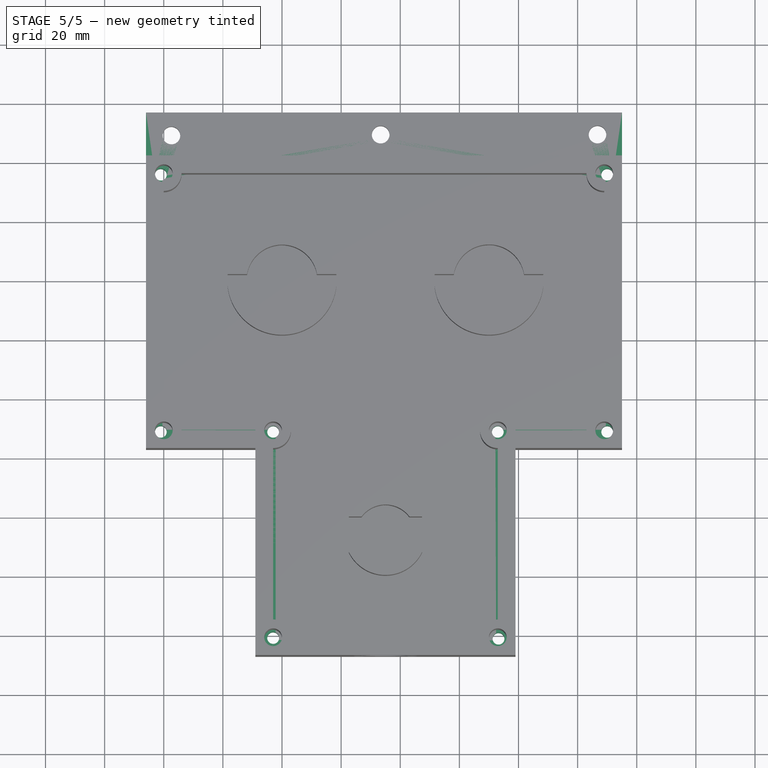
[diagram: stage 5 of 5 — top view after this stage's code; geometry added in this stage tinted green]
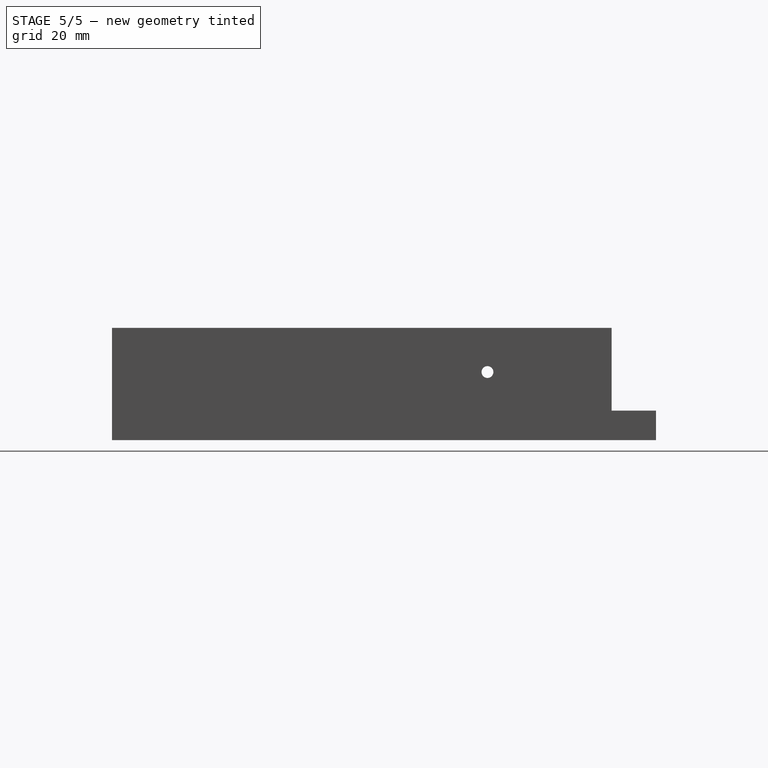
[diagram: stage 5 of 5 — right view after this stage's code; geometry added in this stage tinted green]
FEATURE [Sketcher::SketchObject] Sketch004
  FullyConstrained = false
  MapMode = 5
  Support = -> [XY_Plane001]
  sketch-geometry (8):
    g0: LineSegment StartX=-46 StartY=57 StartZ=0 EndX=115 EndY=57 EndZ=0
    g1: LineSegment StartX=115 StartY=57 StartZ=0 EndX=115 EndY=-57 EndZ=0
    g2: LineSegment StartX=115 StartY=-57 StartZ=0 EndX=79 EndY=-57 EndZ=0
    g3: LineSegment StartX=79 StartY=-57 StartZ=0 EndX=79 EndY=-127 EndZ=0
    g4: LineSegment StartX=79 StartY=-127 StartZ=0 EndX=-9 EndY=-127 EndZ=0
    g5: LineSegment StartX=-9 StartY=-127 StartZ=0 EndX=-9 EndY=-57 EndZ=0
    g6: LineSegment StartX=-9 StartY=-57 StartZ=0 EndX=-46 EndY=-57 EndZ=0
    g7: LineSegment StartX=-46 StartY=-57 StartZ=0 EndX=-46 EndY=57 EndZ=0
  constraints (16):
    c: Horizontal(g0)
    c: Coincident(g0,g1)
    c: Vertical(g1)
    c: Coincident(g1,g2)
    c: Horizontal(g2)
    c: Coincident(g2,g3)
    c: Vertical(g3)
    c: Coincident(g3,g4)
    c: Horizontal(g4)
    c: Coincident(g4,g5)
    c: Vertical(g5)
    c: Coincident(g5,g6)
    c: Horizontal(g6)
    c: Coincident(g6,g7)
    c: Coincident(g7,g0)
    c: Vertical(g7)
FEATURE [PartDesign::Pad] Pad002
  Direction = (1,1,1)
  Length = 10
  Length2 = 100
  Profile = -> Sketch004
  Type = 0
FEATURE [Sketcher::SketchObject] Sketch005
  FullyConstrained = false
  MapMode = 5
  Placement = pos=(0,0,10) rot=(0,0,1;0rad)
  Support = -> [Pad002]
  sketch-geometry (11):
    g0: Circle CenterX=-41 CenterY=-51 CenterZ=0 NormalX=0 NormalY=0 NormalZ=1 AngleXU=0 Radius=2.00591
    g1: Circle CenterX=-41 CenterY=36 CenterZ=0 NormalX=0 NormalY=0 NormalZ=1 AngleXU=0 Radius=2.03259
    g2: LineSegment StartX=-41 StartY=-51 StartZ=0 EndX=-41 EndY=48 EndZ=0
    g3: LineSegment StartX=-41 StartY=36 StartZ=0 EndX=117.513 EndY=36 EndZ=0
    g4: LineSegment StartX=110 StartY=-51.7582 StartZ=0 EndX=110 EndY=47.4828 EndZ=0
    g5: Circle CenterX=110 CenterY=36 CenterZ=0 NormalX=0 NormalY=0 NormalZ=1 AngleXU=0 Radius=2.09893
    g6: Circle CenterX=110 CenterY=-51 CenterZ=0 NormalX=0 NormalY=0 NormalZ=1 AngleXU=0 Radius=2.02758
    g7: Circle CenterX=-3 CenterY=-51 CenterZ=0 NormalX=0 NormalY=0 NormalZ=1 AngleXU=0 Radius=2.1637
    g8: Circle CenterX=73 CenterY=-51 CenterZ=0 NormalX=0 NormalY=0 NormalZ=1 AngleXU=0 Radius=2.51502
    g9: Circle CenterX=73.2416 CenterY=-121 CenterZ=0 NormalX=0 NormalY=0 NormalZ=1 AngleXU=0 Radius=2.42234
    g10: Circle CenterX=-3 CenterY=-120.759 CenterZ=0 NormalX=0 NormalY=0 NormalZ=1 AngleXU=0 Radius=2.84429
  constraints (7):
    c: Coincident(g2,g0)
    c: Vertical(g2)
    c: Coincident(g3,g1)
    c: Horizontal(g3)
    c: Vertical(g4)
    c: PointOnObject(g5,g3)
    c: PointOnObject(g6,g4)
FEATURE [PartDesign::Hole] Hole001
  BaseFeature = -> Pad002
  Depth = 101
  DepthType = 0
  Diameter = 4
  DrillForDepth = false
  DrillPoint = 1
  DrillPointAngle = 118
  HoleCutCountersinkAngle = 90
  HoleCutCustomValues = false
  HoleCutDepth = 0
  HoleCutDiameter = 6.1
  HoleCutType = 0
  ModelActualThread = false
  Profile = -> Sketch005
  Tapered = false
  TaperedAngle = 90
  ThreadAngle = 0
  ThreadClass = 0
  ThreadCutOffInner = 0
  ThreadCutOffOuter = 0
  ThreadDirection = 0
  ThreadFit = 0
  ThreadPitch = 0
  ThreadSize = 0
  ThreadType = 0
  Threaded = false
FEATURE [Sketcher::SketchObject] Sketch007
  FullyConstrained = false
  MapMode = 5
  Placement = pos=(0,0,10) rot=(0,0,1;0rad)
  Support = -> [Hole001]
  sketch-geometry (3):
    g0: Circle CenterX=-37.4101 CenterY=49.2594 CenterZ=0 NormalX=0 NormalY=0 NormalZ=1 AngleXU=0 Radius=2.92669
    g1: Circle CenterX=33.3832 CenterY=49.5093 CenterZ=0 NormalX=0 NormalY=0 NormalZ=1 AngleXU=0 Radius=3.0269
    g2: Circle CenterX=106.739 CenterY=49.5639 CenterZ=0 NormalX=0 NormalY=0 NormalZ=1 AngleXU=0 Radius=2.72283
FEATURE [PartDesign::Hole] Hole003
  BaseFeature = -> Hole001
  Depth = 25
  DepthType = 0
  Diameter = 6
  DrillForDepth = false
  DrillPoint = 1
  DrillPointAngle = 118
  HoleCutCountersinkAngle = 90
  HoleCutCustomValues = false
  HoleCutDepth = 0
  HoleCutDiameter = 6.1
  HoleCutType = 0
  ModelActualThread = false
  Profile = -> Sketch007
  Tapered = false
  TaperedAngle = 90
  ThreadAngle = 0
  ThreadClass = 0
  ThreadCutOffInner = 0
  ThreadCutOffOuter = 0
  ThreadDirection = 0
  ThreadFit = 0
  ThreadPitch = 0
  ThreadSize = 0
  ThreadType = 0
  Threaded = false
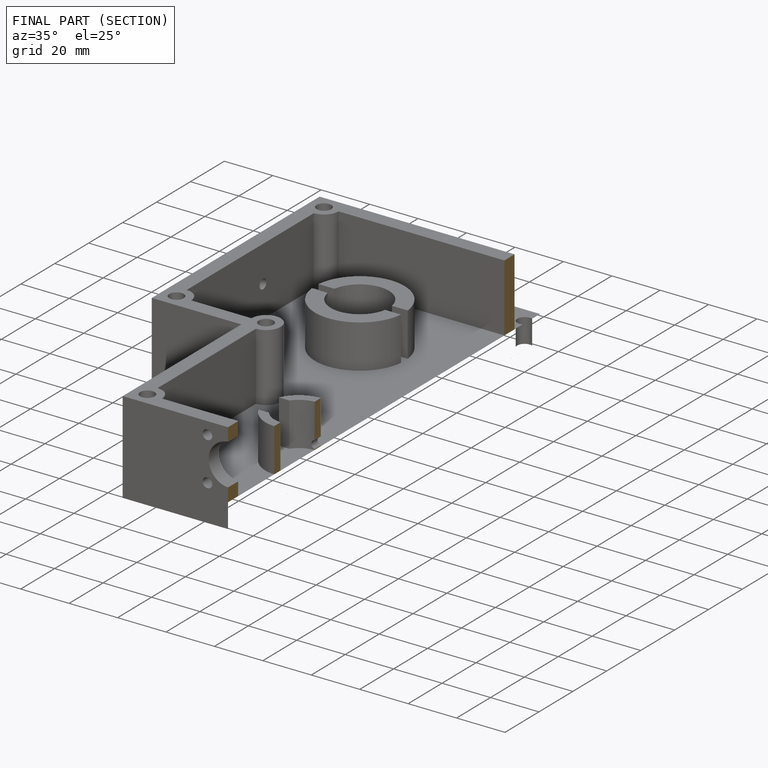
[diagram: finished part — half-section view (interior)]
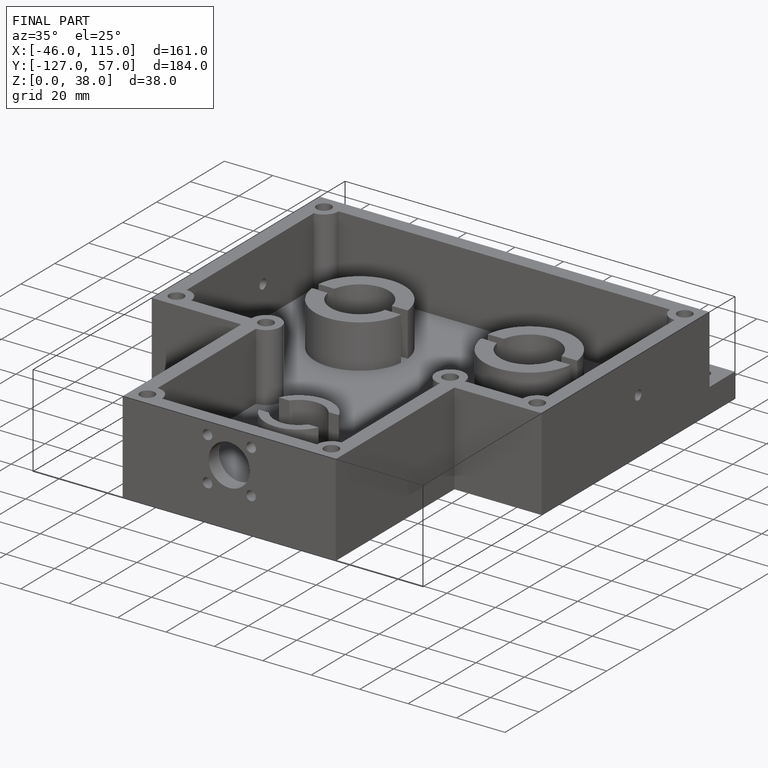
[diagram: finished part — iso view with bounding-box wireframe]
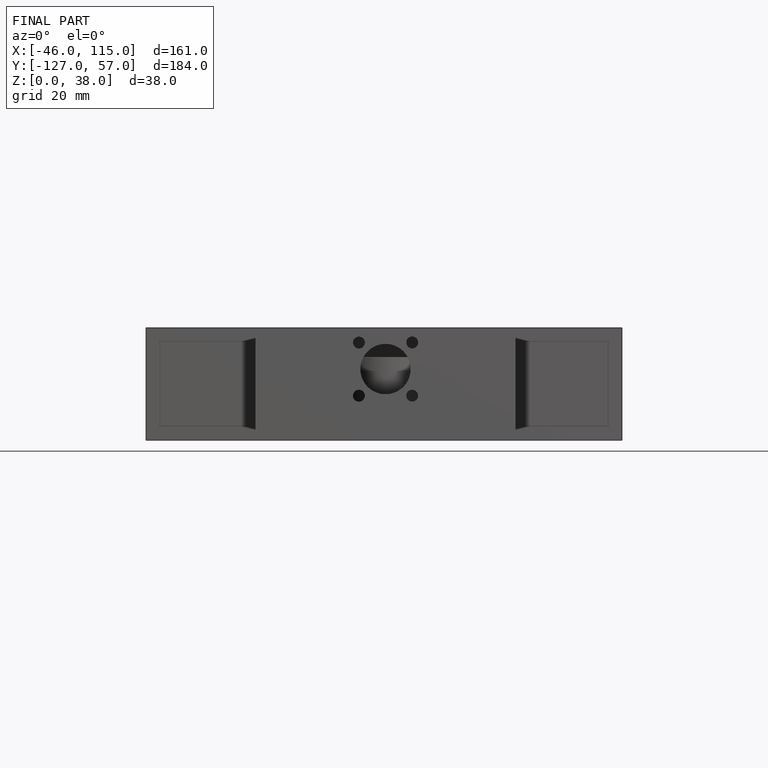
[diagram: finished part — front view with bounding-box wireframe]
